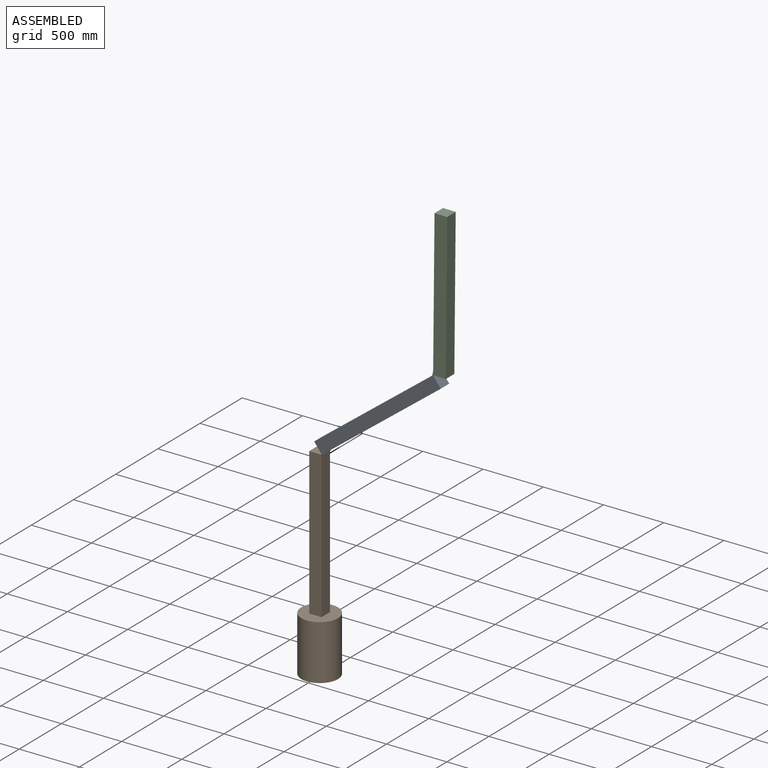
[diagram: assembled view]
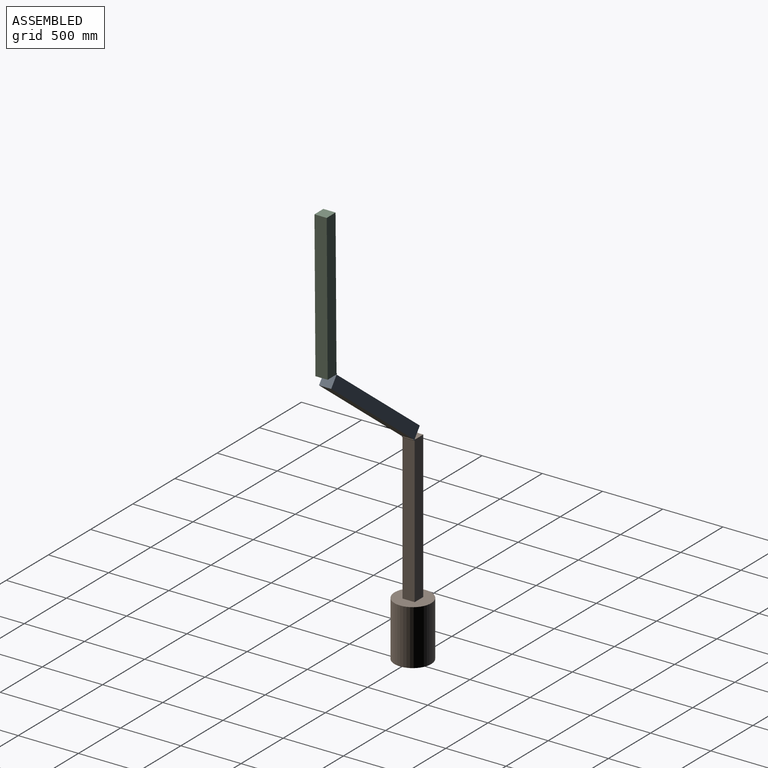
[diagram: assembled view, second angle]
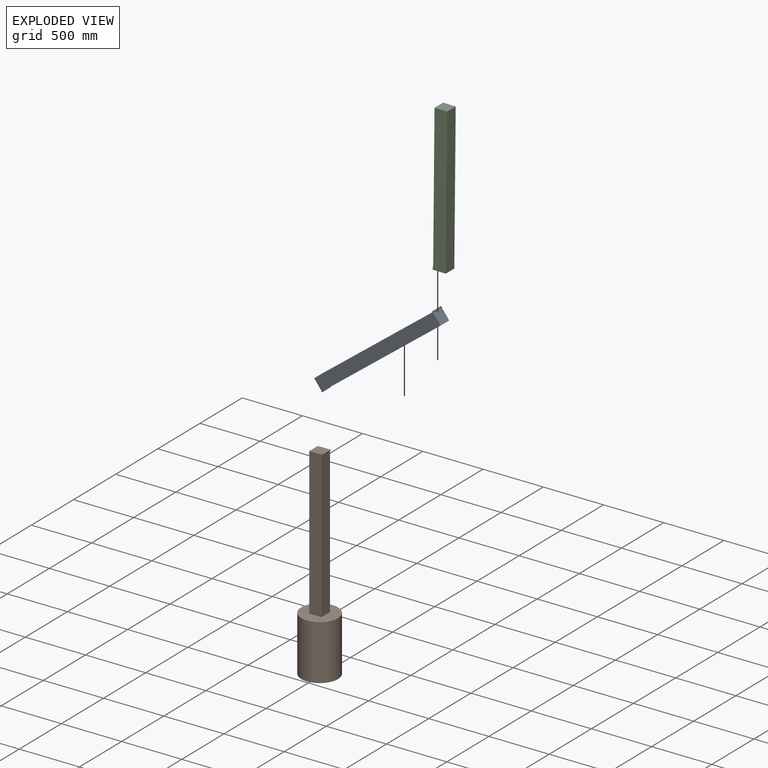
[diagram: exploded view]
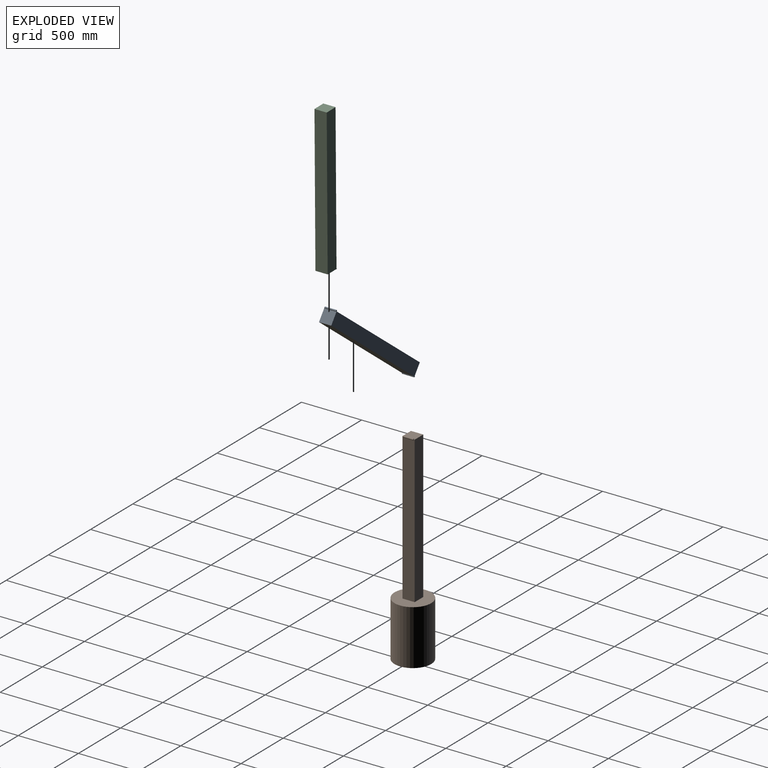
[diagram: exploded view, second angle]
ASSEMBLY  parts=3 mates=2
PART A: 11 faces, bbox 119.4x101.6x1256.1 mm
  f0: cylinder r=5.08mm len=101.6mm, axis (0,-1,0), area 2434.8mm2, adj f1,f2,f3,f4
  f1: plane 1249.71x109.86mm, normal (0,1,0), area 130463.9mm2, adj f0,f3,f4,f5,f6
  f2: plane 1249.71x109.86mm, normal (0,-1,0), area 130463.9mm2, adj f0,f3,f4,f5,f6
  f3: plane 1239.55x101.6mm, normal (1,0,0), area 125937.8mm2, adj f0,f1,f2,f6
  f4: plane 101.6x99.7mm, normal (0,0,-1), area 10129mm2, adj f0,f1,f2,f5
  f5: plane 1244.6x101.6mm, normal (-1,0,0), area 125920.6mm2, adj f1,f2,f4,f6,f8,f9,f10
  f6: plane 104.78x101.6mm, normal (0,0,1), area 10338.7mm2, adj f1,f2,f3,f5,f8,f9,f10
  f7: cylinder r=2.54mm len=96.52mm, axis (0,1,0), area 1540.4mm2, adj f9,f10
  f8: cylinder r=6.35mm len=96.52mm, axis (0,1,0), area 3209.1mm2, adj f5,f6,f9,f10
  f9: plane 12.7x12.7mm, normal (0,-1,0), area 94mm2, adj f5,f6,f7,f8
  f10: plane 12.7x12.7mm, normal (0,1,0), area 94mm2, adj f5,f6,f7,f8
PART B: 12 faces, bbox 304.8x304.8x1682.8 mm
  f0: plane 304.8x304.8mm, normal (0,0,1), area 62643.3mm2, adj f1,f3,f4,f5,f6
  f1: cylinder r=152.4mm len=457.2mm, axis (0,0,1), area 437795.3mm2, adj f0,f2
  f2: plane 304.8x304.8mm, normal (0,0,-1), area 72965.9mm2, adj f1
  f3: plane 1219.2x101.6mm, normal (0,1,0), area 123870.7mm2, adj f0,f4,f6,f7
  f4: plane 1219.2x101.6mm, normal (-1,0,0), area 123870.7mm2, adj f0,f3,f5,f7
  f5: plane 1219.2x101.6mm, normal (0,-1,0), area 123870.7mm2, adj f0,f4,f6,f7
  f6: plane 1219.2x101.6mm, normal (1,0,0), area 123381.8mm2, adj f0,f3,f5,f7,f9,f10,f11
  f7: plane 101.6x101.6mm, normal (0,0,1), area 10040.3mm2, adj f3,f4,f5,f6,f9,f10,f11
  f8: cylinder r=2.54mm len=88.9mm, axis (0,1,0), area 1418.8mm2, adj f10,f11
  f9: cylinder r=6.35mm len=88.9mm, axis (0,1,0), area 2955.8mm2, adj f6,f7,f10,f11
  f10: plane 12.7x12.7mm, normal (0,-1,0), area 94mm2, adj f6,f7,f8,f9
  f11: plane 12.7x12.7mm, normal (0,1,0), area 94mm2, adj f6,f7,f8,f9
PART C: 11 faces, bbox 109.9x101.6x1221.1 mm
  f0: cylinder r=1.91mm len=101.6mm, axis (0,-1,0), area 1208.6mm2, adj f1,f2,f3,f4,f7
  f1: plane 3.81x3.81mm, normal (0,1,0), area 11.4mm2, adj f0
  f2: plane 1221.13x109.86mm, normal (0,-1,0), area 127830.9mm2, adj f0,f3,f4,f5,f6,f8,f10
  f3: plane 23.52x2.54mm, normal (-1,0,0), area 59.7mm2, adj f0,f2,f6,f7
  f4: plane 106.05x101.6mm, normal (0,0,-1), area 10648.4mm2, adj f0,f2,f5,f7,f8,f9
  f5: plane 1219.2x101.6mm, normal (1,0,0), area 123870.7mm2, adj f2,f4,f9,f10
  f6: plane 3.18x2.54mm, normal (0,0,1), area 8.1mm2, adj f2,f3,f7,f8
  f7: plane 25.4x3.18mm, normal (0,1,0), area 77.8mm2, adj f0,f3,f4,f6,f8
  f8: plane 1219.2x101.6mm, normal (-1,0,0), area 123806.2mm2, adj f2,f4,f6,f7,f9,f10
  f9: plane 1219.2x104.78mm, normal (0,1,0), area 127741.7mm2, adj f4,f5,f8,f10
  f10: plane 104.78x101.6mm, normal (0,0,1), area 10645.1mm2, adj f2,f5,f8,f9
PLACE A rot(axis=(0,1,0),52.4deg) t=(-894.32,62.18,386.49)mm
PLACE B t=(50.96,62.18,-132.11)mm fixed
PLACE C rot(axis=(0,1,0),0.5deg) t=(1056.49,62.18,-532.68)mm
MATE revolute C.f0 <-> A.f7  axis (0,-1,0) through (1025.62,62.18,1931.54)mm
MATE revolute B.f8 <-> A.f0  axis (0,1,0) through (104.94,62.18,1087.09)mm
